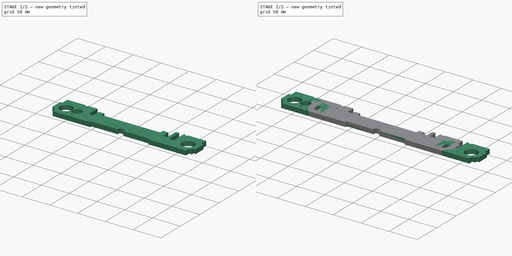
[diagram: build sequence overview — one tinted view per stage of 2, left to right]
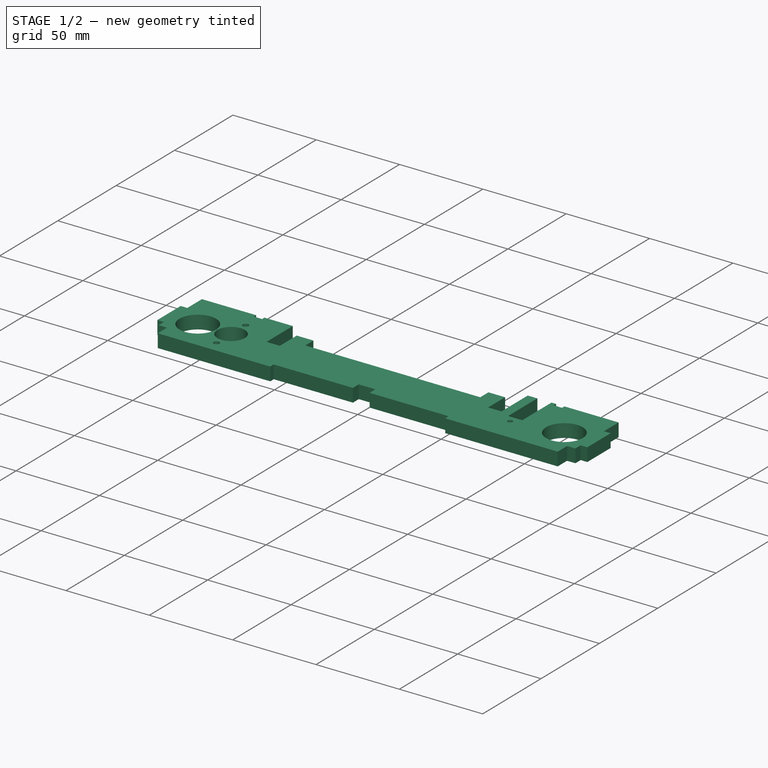
[diagram: stage 1 of 2 — iso view after this stage's code; geometry added in this stage tinted green]
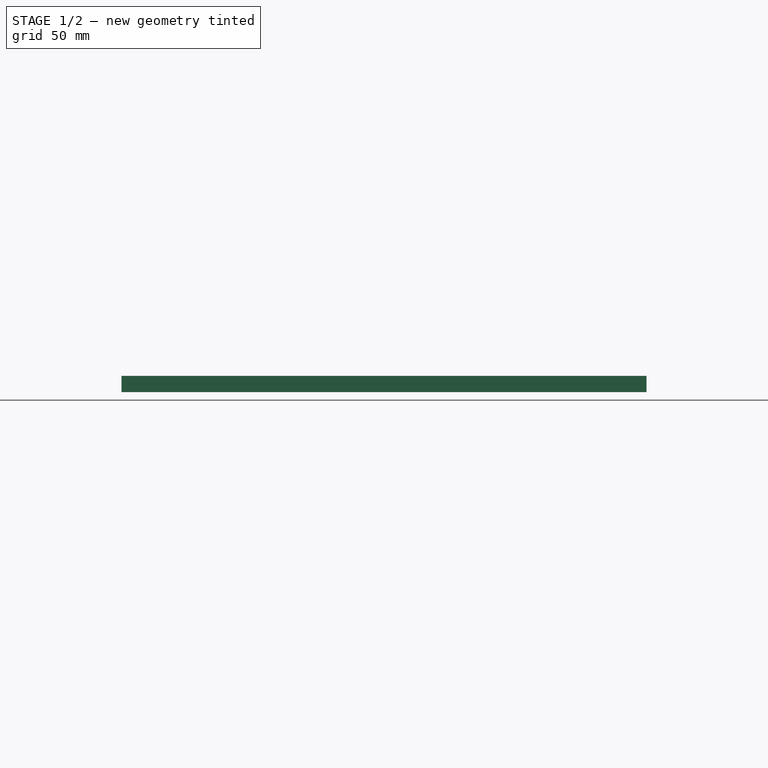
[diagram: stage 1 of 2 — front view after this stage's code; geometry added in this stage tinted green]
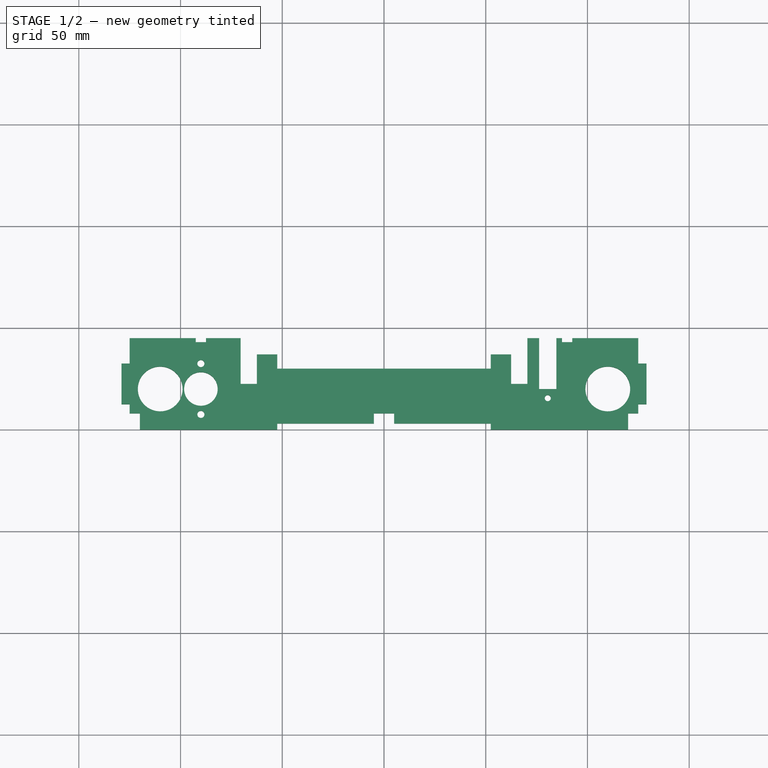
[diagram: stage 1 of 2 — top view after this stage's code; geometry added in this stage tinted green]
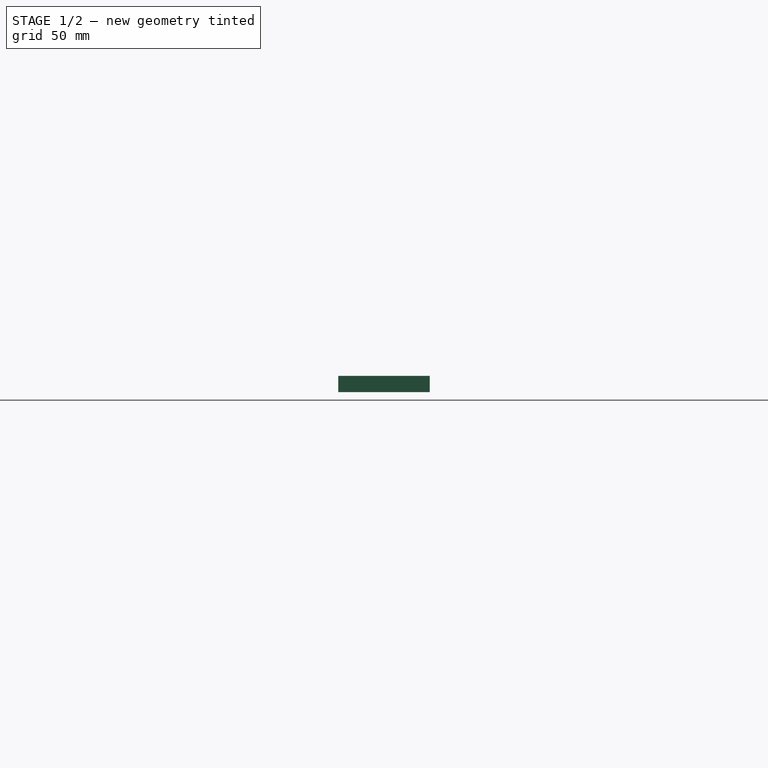
[diagram: stage 1 of 2 — right view after this stage's code; geometry added in this stage tinted green]
FCSTD DOCUMENT  (FreeCAD 0.19R24291 (Git))
Label: sibi_scroll-supports
License: All rights reserved
LicenseURL: http://en.wikipedia.org/wiki/All_rights_reserved
objects: App::MeasureDistance×3, Sketcher::SketchObject×2, PartDesign::Pad×2, PartDesign::Body×2, TechDraw::DrawViewPart×2, App::Part×2, TechDraw::DrawSVGTemplate×1, TechDraw::DrawPage×1
note: 8 computed .brp shape members not serialized (recipe doc carries the construction recipe); baked Part::Feature solids carry a one-line shape summary decoded from their .brp

FEATURE [PartDesign::Body] Body  label="short-scroll"
  Group = -> [Sketch,Pad]
  Origin = -> Origin
  Placement = pos=(1,0,0) rot=(0,0,1;0rad)
  Tip = -> Pad
FEATURE [Sketcher::SketchObject] Sketch001
  FullyConstrained = true
  MapMode = 5
  Support = -> [XY_Plane001]
  sketch-geometry (56):
    g0: LineSegment StartX=-125 StartY=45 StartZ=0 EndX=-92.5 EndY=45 EndZ=0
    g1: LineSegment StartX=125 StartY=45 StartZ=0 EndX=125 EndY=32.5 EndZ=0
    g2: LineSegment StartX=120 StartY=0 StartZ=0 EndX=52.5 EndY=0 EndZ=0
    g3: LineSegment StartX=-125 StartY=8 StartZ=0 EndX=-125 EndY=12.5 EndZ=0
    g4: LineSegment StartX=52.5 StartY=37 StartZ=0 EndX=52.5 EndY=30 EndZ=0
    g5: LineSegment StartX=52.5 StartY=30 StartZ=0 EndX=-52.5 EndY=30 EndZ=0
    g6: LineSegment StartX=-52.5 StartY=30 StartZ=0 EndX=-52.5 EndY=37 EndZ=0
    g7: LineSegment StartX=-62.5 StartY=37 StartZ=0 EndX=-62.5 EndY=22.5 EndZ=0
    g8: LineSegment StartX=-62.5 StartY=22.5 StartZ=0 EndX=-70.5 EndY=22.5 EndZ=0
    g9: LineSegment StartX=-70.5 StartY=22.5 StartZ=0 EndX=-70.5 EndY=45 EndZ=0
    g10: LineSegment StartX=70.5 StartY=45 StartZ=0 EndX=70.5 EndY=22.5 EndZ=0
    g11: LineSegment StartX=70.5 StartY=22.5 StartZ=0 EndX=62.5 EndY=22.5 EndZ=0
    g12: LineSegment StartX=62.5 StartY=22.5 StartZ=0 EndX=62.5 EndY=37 EndZ=0
    g13: LineSegment StartX=52.5 StartY=37 StartZ=0 EndX=62.5 EndY=37 EndZ=0
    g14: LineSegment StartX=-62.5 StartY=37 StartZ=0 EndX=-52.5 EndY=37 EndZ=0
    g15: Circle CenterX=-110 CenterY=20 CenterZ=0 NormalX=0 NormalY=0 NormalZ=1 AngleXU=0 Radius=11
    g16: Circle CenterX=110 CenterY=20 CenterZ=0 NormalX=0 NormalY=0 NormalZ=1 AngleXU=0 Radius=11
    g17: LineSegment StartX=70.5 StartY=45 StartZ=0 EndX=76.25 EndY=45 EndZ=0
    g18: LineSegment StartX=84.75 StartY=45 StartZ=0 EndX=84.75 EndY=20 EndZ=0
    g19: LineSegment StartX=84.75 StartY=20 StartZ=0 EndX=76.25 EndY=20 EndZ=0
    g20: LineSegment StartX=76.25 StartY=20 StartZ=0 EndX=76.25 EndY=45 EndZ=0
    g21: LineSegment StartX=84.75 StartY=45 StartZ=0 EndX=87.5 EndY=45 EndZ=0
    g22: GeomPoint X=80.5 Y=20 Z=0
    g23: GeomPoint X=0 Y=30 Z=0
    g24: Circle CenterX=80.5 CenterY=15.5 CenterZ=0 NormalX=0 NormalY=0 NormalZ=1 AngleXU=0 Radius=1.5
    g25: Circle CenterX=-90 CenterY=20 CenterZ=0 NormalX=0 NormalY=0 NormalZ=1 AngleXU=0 Radius=8.25
    g26: Circle CenterX=-90 CenterY=32.5 CenterZ=0 NormalX=0 NormalY=0 NormalZ=1 AngleXU=0 Radius=1.75
    g27: Circle CenterX=-90 CenterY=7.5 CenterZ=0 NormalX=0 NormalY=0 NormalZ=1 AngleXU=0 Radius=1.75
    g28: LineSegment StartX=125 StartY=32.5 StartZ=0 EndX=129 EndY=32.5 EndZ=0
    g29: LineSegment StartX=129 StartY=32.5 StartZ=0 EndX=129 EndY=12.5 EndZ=0
    g30: LineSegment StartX=129 StartY=12.5 StartZ=0 EndX=125 EndY=12.5 EndZ=0
    g31: LineSegment StartX=125 StartY=12.5 StartZ=0 EndX=125 EndY=8 EndZ=0
    g32: LineSegment StartX=-125 StartY=32.5 StartZ=0 EndX=-129 EndY=32.5 EndZ=0
    g33: LineSegment StartX=-129 StartY=32.5 StartZ=0 EndX=-129 EndY=12.5 EndZ=0
    g34: LineSegment StartX=-129 StartY=12.5 StartZ=0 EndX=-125 EndY=12.5 EndZ=0
    g35: LineSegment StartX=-125 StartY=32.5 StartZ=0 EndX=-125 EndY=45 EndZ=0
    g36: LineSegment StartX=-52.5 StartY=0 StartZ=0 EndX=-52.5 EndY=3 EndZ=0
    g37: LineSegment StartX=-52.5 StartY=3 StartZ=0 EndX=-5 EndY=3 EndZ=0
    g38: LineSegment StartX=52.5 StartY=3 StartZ=0 EndX=52.5 EndY=0 EndZ=0
    g39: LineSegment StartX=-52.5 StartY=0 StartZ=0 EndX=-120 EndY=0 EndZ=0
    g40: LineSegment StartX=-5 StartY=3 StartZ=0 EndX=-5 EndY=8 EndZ=0
    g41: LineSegment StartX=-5 StartY=8 StartZ=0 EndX=5 EndY=8 EndZ=0
    g42: LineSegment StartX=5 StartY=8 StartZ=0 EndX=5 EndY=3 EndZ=0
    g43: LineSegment StartX=5 StartY=3 StartZ=0 EndX=52.5 EndY=3 EndZ=0
    g44: LineSegment StartX=-125 StartY=8 StartZ=0 EndX=-120 EndY=8 EndZ=0
    g45: LineSegment StartX=-120 StartY=8 StartZ=0 EndX=-120 EndY=0 EndZ=0
    g46: LineSegment StartX=120 StartY=0 StartZ=0 EndX=120 EndY=8 EndZ=0
    g47: LineSegment StartX=120 StartY=8 StartZ=0 EndX=125 EndY=8 EndZ=0
    g48: LineSegment StartX=87.5 StartY=45 StartZ=0 EndX=87.5 EndY=43 EndZ=0
    g49: LineSegment StartX=87.5 StartY=43 StartZ=0 EndX=92.5 EndY=43 EndZ=0
    g50: LineSegment StartX=92.5 StartY=43 StartZ=0 EndX=92.5 EndY=45 EndZ=0
    g51: LineSegment StartX=92.5 StartY=45 StartZ=0 EndX=125 EndY=45 EndZ=0
    g52: LineSegment StartX=-87.5 StartY=45 StartZ=0 EndX=-87.5 EndY=43 EndZ=0
    g53: LineSegment StartX=-87.5 StartY=43 StartZ=0 EndX=-92.5 EndY=43 EndZ=0
    g54: LineSegment StartX=-92.5 StartY=43 StartZ=0 EndX=-92.5 EndY=45 EndZ=0
    g55: LineSegment StartX=-87.5 StartY=45 StartZ=0 EndX=-70.5 EndY=45 EndZ=0
  constraints (153):
    c: Coincident(g35,g0)
    c: Horizontal(g0)
    c: Vertical(g1)
    c: Vertical(g3)
    c: Coincident(g4,g5)
    c: Coincident(g5,g6)
    c: Horizontal(g5)
    c: Vertical(g4)
    c: Vertical(g6)
    c: Coincident(g7,g8)
    c: Coincident(g8,g9)
    c: Horizontal(g8)
    c: Vertical(g7)
    c: Vertical(g9)
    c: Coincident(g10,g11)
    c: Coincident(g11,g12)
    c: Horizontal(g11)
    c: Vertical(g10)
    c: Vertical(g12)
    c: Coincident(g6,g14)
    c: Coincident(g7,g14)
    c: Coincident(g9,g55)
    c: Coincident(g4,g13)
    c: Coincident(g12,g13)
    c: Equal(g8,g11)
    c: Equal(g13,g14)
    c: DistanceX(g11,g11) = 8
    c: DistanceY(g10,g10) = 22.5
    c: Equal(g15,g16)
    c: Diameter(g16) = 22
    c: DistanceX(g16,g1) = 15
    c: DistanceY(g16,g15) = 0
    c: DistanceX(g5,g5) = 105
    c: Coincident(g17,g10)
    c: Coincident(g51,g1)
    c: DistanceX(g14,g14) = 10
    c: Coincident(g18,g19)
    c: Coincident(g19,g20)
    c: Horizontal(g19)
    c: Vertical(g18)
    c: Vertical(g20)
    c: Coincident(g17,g20)
    c: Coincident(g21,g18)
    c: Tangent(g17,g21)
    c: DistanceX(g17,g18) = 8.5
    c: Symmetric(g19,g18,g22)
    c: DistanceX(g10,g22) = 10
    c: Symmetric(g5,g4,g23)
    c: DistanceX(g23,g-1) = 0
    c: Diameter(g24) = 3
    c: DistanceY(g24,g22) = 4.5
    c: DistanceX(g10,g24) = 10
    c: Diameter(g25) = 16.5
    c: DistanceY(g25,g0) = 25
    c: Diameter(g26) = 3.5
    c: Equal(g27,g26)
    c: Symmetric(g27,g26,g25)
    c: DistanceX(g15,g25) = 20
    c: DistanceX(g15,g26) = 20
    c: Coincident(g28,g29)
    c: Coincident(g29,g30)
    c: Horizontal(g28)
    c: Horizontal(g30)
    c: Vertical(g29)
    c: DistanceX(g28,g28) = 4
    c: DistanceY(g29,g29) = 20
    c: DistanceY(g28,g1) = 12.5
    c: Coincident(g1,g28)
    c: Horizontal(g32)
    c: Coincident(g32,g33)
    c: Vertical(g33)
    c: Coincident(g33,g34)
    c: Horizontal(g34)
    c: DistanceY(g33,g33) = 20
    c: DistanceX(g32,g32) = 4
    c: DistanceY(g32,g0) = 12.5
    c: Coincident(g3,g34)
    c: Coincident(g35,g32)
    c: Tangent(g3,g35)
    c: Coincident(g30,g31)
    c: Vertical(g36)
    c: Coincident(g36,g37)
    c: Horizontal(g37)
    c: Coincident(g43,g38)
    c: DistanceY(g38,g38) = 3
    c: Symmetric(g38,g36,g-1)
    c: Coincident(g39,g36)
    c: Tangent(g2,g39)
    c: Vertical(g40)
    c: Coincident(g40,g41)
    c: Horizontal(g41)
    c: Coincident(g41,g42)
    c: Vertical(g42)
    c: Symmetric(g42,g40,g-2)
    c: DistanceY(g42,g42) = 5
    c: DistanceX(g41,g41) = 10
    c: Coincident(g37,g40)
    c: PointOnObject(g43,g42)
    c: Tangent(g37,g43)
    c: Horizontal(g44)
    c: Coincident(g44,g45)
    c: Vertical(g45)
    c: DistanceY(g45,g45) = 8
    c: DistanceX(g44,g44) = 5
    c: Coincident(g39,g45)
    c: Coincident(g3,g44)
    c: Vertical(g46)
    c: Coincident(g46,g47)
    c: Horizontal(g47)
    c: DistanceX(g47,g47) = 5
    c: DistanceY(g46,g46) = 8
    c: Coincident(g31,g47)
    c: Coincident(g2,g46)
    c: Coincident(g2,g38)
    c: Symmetric(g39,g2,g-2)
    c: DistanceY(g39,g0) = 45
    c: DistanceX(g32,g15) = 15
    c: Vertical(g48)
    c: Coincident(g48,g49)
    c: Horizontal(g49)
    c: Coincident(g49,g50)
    c: Vertical(g50)
    c: DistanceY(g49,g50) = 2
    c: DistanceX(g49,g49) = 5
    c: DistanceX(g10,g48) = 17
    c: Coincident(g21,g48)
    c: Coincident(g51,g50)
    c: Tangent(g21,g51)
    c: Vertical(g52)
    c: Coincident(g52,g53)
    c: Horizontal(g53)
    c: Coincident(g53,g54)
    c: Vertical(g54)
    c: Equal(g53,g49)
    c: Equal(g48,g52)
    c: Coincident(g0,g54)
    c: Coincident(g55,g52)
    c: Tangent(g0,g55)
    c: Equal(g51,g0)
    c: DistanceY(g25,g15) = 0
    c: DistanceY(g27,g26) = 25
    c: Tangent(g38,g4)
    c: Tangent(g31,g1)
    c: DistanceX(g3,g31) = 250
    c: DistanceY(g16,g18) = 0
    c: DistanceY(g36,g5) = 30
    c: DistanceY(g7,g9) = 8
    c: DistanceY(g7,g6) = 0
    c: Equal(g9,g10)
    c: Equal(g4,g6)
    c: DistanceY(g4,g12) = 0
    c: Equal(g12,g7)
    c: DistanceY(g17,g10) = 0
FEATURE [PartDesign::Pad] Pad001
  Direction = (1,1,1)
  Length = 8
  Length2 = 100
  Profile = -> Sketch001
  Refine = true
  Type = 0
FEATURE [PartDesign::Body] Body001  label="long-scroll"
  Group = -> [Sketch001,Pad001]
  Origin = -> Origin001
  Tip = -> Pad001
FEATURE [TechDraw::DrawSVGTemplate] Template
  Height = 297
  Orientation = 1
  Width = 420
FEATURE [TechDraw::DrawViewPart] View
  CoarseView = false
  Direction = (0,0,1)
  Focus = 100
  HardHidden = false
  IsoCount = 0
  IsoHidden = false
  IsoVisible = false
  LockPosition = false
  Perspective = false
  Rotation = 0
  ScaleType = 0
  SeamHidden = false
  SeamVisible = true
  SmoothHidden = false
  SmoothVisible = true
  Source = -> [Body]
  X = 192.9
  XDirection = (1,0,0)
  Y = 240.035
FEATURE [TechDraw::DrawViewPart] View001
  CoarseView = false
  Direction = (0,0,1)
  Focus = 100
  HardHidden = false
  IsoCount = 0
  IsoHidden = false
  IsoVisible = false
  LockPosition = false
  Perspective = false
  Rotation = 0
  ScaleType = 0
  SeamHidden = false
  SeamVisible = true
  SmoothHidden = false
  SmoothVisible = true
  Source = -> [Body001]
  X = 152.165
  XDirection = (1,0,0)
  Y = 187.737
FEATURE [TechDraw::DrawPage] Page
  KeepUpdated = true
  NextBalloonIndex = 1
  ProjectionType = 0
  Template = -> Template
  Views = -> [View,View001]
FEATURE [App::Part] Part  label="verts"
  Group = -> [Body]
  Origin = -> Origin002
FEATURE [App::Part] Part001  label="horz"
  Group = -> [Body001]
  Origin = -> Origin003
FEATURE [App::MeasureDistance] Distance001  label="Distance: 67,00 mm"
  Distance = 67
  P1 = (-167,0,8)
  P2 = (-100,-2e-16,8)
FEATURE [App::MeasureDistance] Distance002  label="Distance: 67,50 mm"
  Distance = 67.5
  P1 = (-120,0,8)
  P2 = (-52.5,0,8)
FEATURE [App::MeasureDistance] Distance  label="Distance: 10,00 mm"
  Distance = 10
  P1 = (-62.5,45,8)
  P2 = (-52.5,45,8)
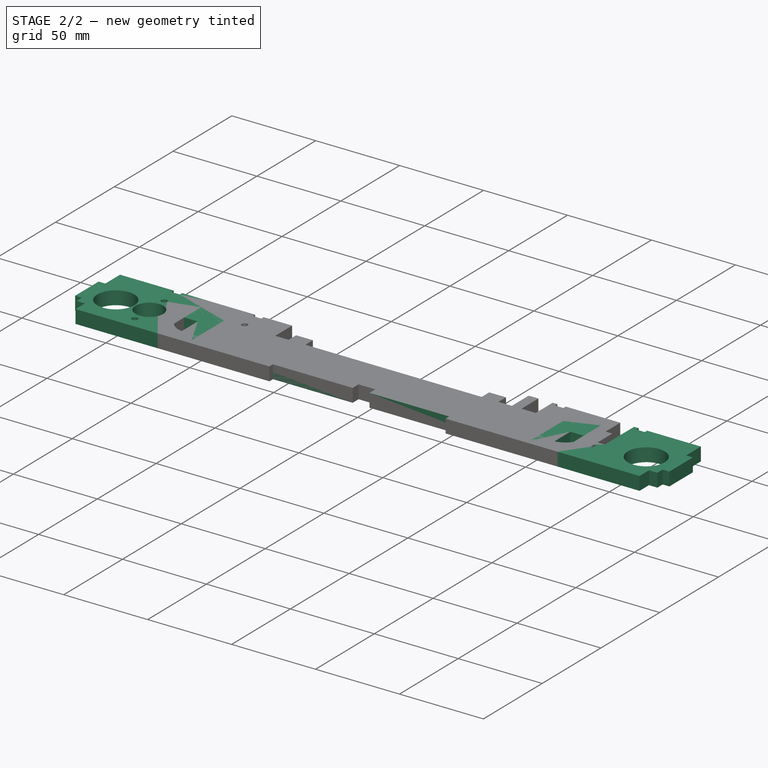
[diagram: stage 2 of 2 — iso view after this stage's code; geometry added in this stage tinted green]
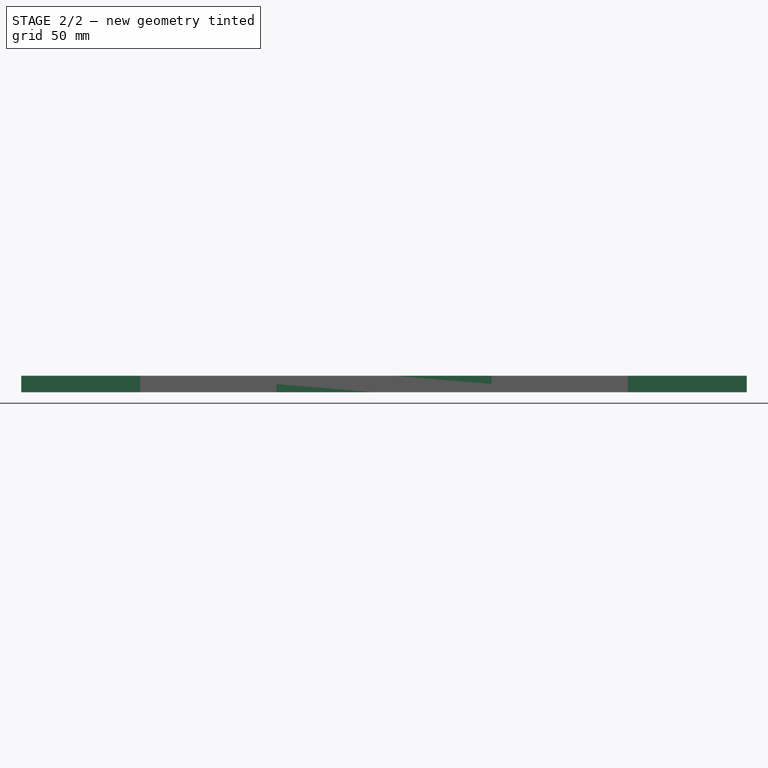
[diagram: stage 2 of 2 — front view after this stage's code; geometry added in this stage tinted green]
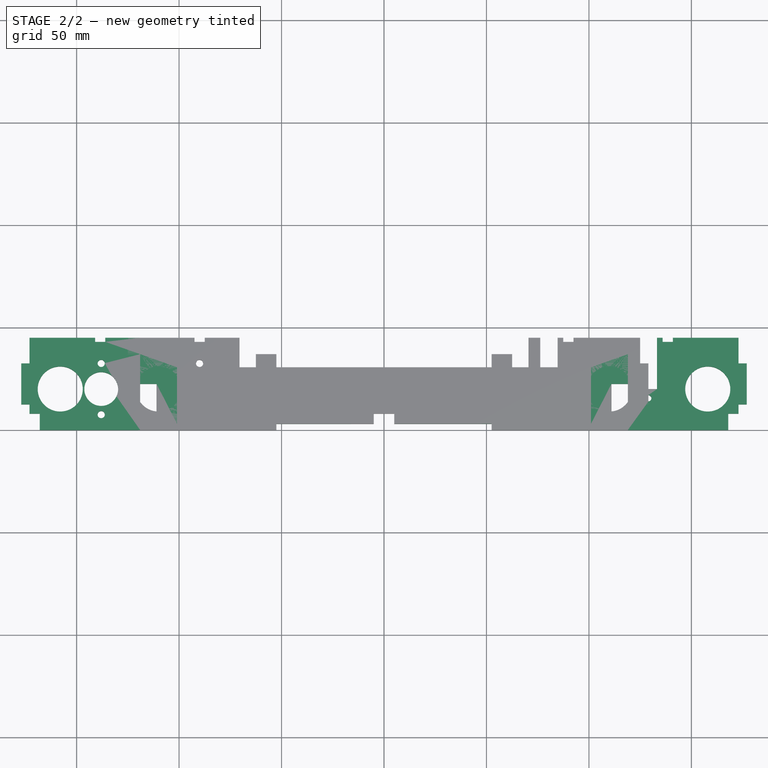
[diagram: stage 2 of 2 — top view after this stage's code; geometry added in this stage tinted green]
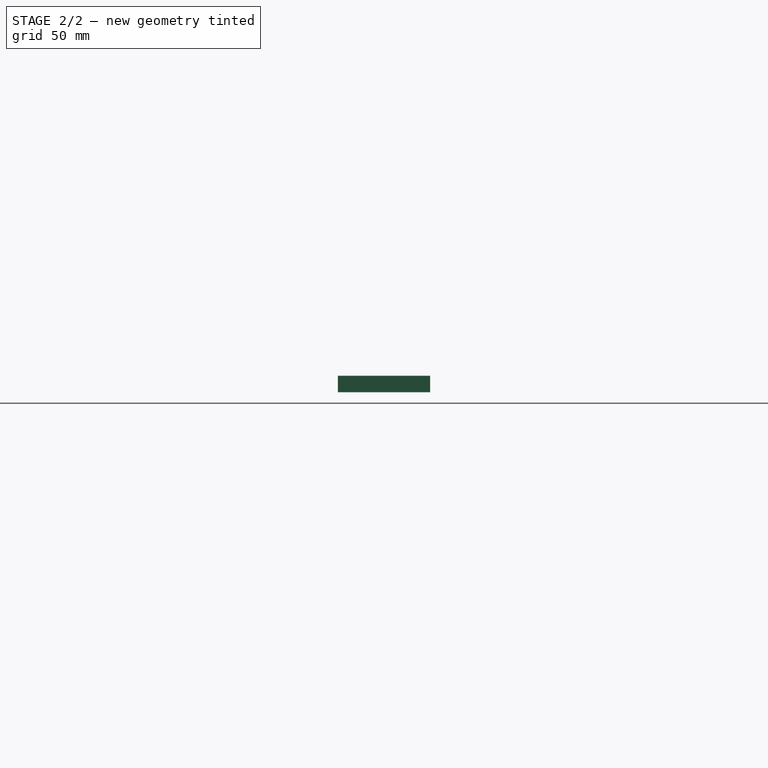
[diagram: stage 2 of 2 — right view after this stage's code; geometry added in this stage tinted green]
FEATURE [Sketcher::SketchObject] Sketch
  FullyConstrained = true
  MapMode = 5
  Support = -> [XY_Plane]
  sketch-geometry (60):
    g0: LineSegment StartX=-173 StartY=45 StartZ=0 EndX=-141 EndY=45 EndZ=0
    g1: LineSegment StartX=173 StartY=45 StartZ=0 EndX=173 EndY=32.5 EndZ=0
    g2: LineSegment StartX=168 StartY=0 StartZ=0 EndX=119 EndY=0 EndZ=0
    g3: LineSegment StartX=-173 StartY=8 StartZ=0 EndX=-173 EndY=12.5 EndZ=0
    g4: LineSegment StartX=101 StartY=37 StartZ=0 EndX=101 EndY=30.6 EndZ=0
    g5: LineSegment StartX=-101 StartY=30.6 StartZ=0 EndX=-101 EndY=37 EndZ=0
    g6: LineSegment StartX=-119 StartY=22.5 StartZ=0 EndX=-111 EndY=22.5 EndZ=0
    g7: LineSegment StartX=-111 StartY=22.5 StartZ=0 EndX=-111 EndY=0 EndZ=0
    g8: LineSegment StartX=-119 StartY=0 StartZ=0 EndX=-119 EndY=22.5 EndZ=0
    g9: LineSegment StartX=111 StartY=22.5 StartZ=0 EndX=119 EndY=22.5 EndZ=0
    g10: LineSegment StartX=119 StartY=22.5 StartZ=0 EndX=119 EndY=0 EndZ=0
    g11: LineSegment StartX=111 StartY=0 StartZ=0 EndX=111 EndY=22.5 EndZ=0
    g12: LineSegment StartX=111 StartY=0 StartZ=0 EndX=101 EndY=0 EndZ=0
    g13: LineSegment StartX=-119 StartY=0 StartZ=0 EndX=-168 EndY=0 EndZ=0
    g14: Circle CenterX=-158 CenterY=20 CenterZ=0 NormalX=0 NormalY=0 NormalZ=1 AngleXU=0 Radius=11
    g15: Circle CenterX=158 CenterY=20 CenterZ=0 NormalX=0 NormalY=0 NormalZ=1 AngleXU=0 Radius=11
    g16: LineSegment StartX=-101 StartY=30.6 StartZ=0 EndX=101 EndY=30.6 EndZ=0
    g17: LineSegment StartX=133.25 StartY=45 StartZ=0 EndX=133.25 EndY=20 EndZ=0
    g18: LineSegment StartX=133.25 StartY=20 StartZ=0 EndX=124.75 EndY=20 EndZ=0
    g19: LineSegment StartX=124.75 StartY=20 StartZ=0 EndX=124.75 EndY=45 EndZ=0
    g20: LineSegment StartX=133.25 StartY=45 StartZ=0 EndX=136 EndY=45 EndZ=0
    g21: GeomPoint X=129 Y=20 Z=0
    g22: GeomPoint X=0 Y=30.6 Z=0
    g23: Circle CenterX=129 CenterY=15.5 CenterZ=0 NormalX=0 NormalY=0 NormalZ=1 AngleXU=0 Radius=1.5
    g24: Circle CenterX=-138 CenterY=20 CenterZ=0 NormalX=0 NormalY=0 NormalZ=1 AngleXU=0 Radius=8.25
    g25: LineSegment StartX=-173 StartY=8 StartZ=0 EndX=-168 EndY=8 EndZ=0
    g26: LineSegment StartX=-168 StartY=8 StartZ=0 EndX=-168 EndY=0 EndZ=0
    g27: LineSegment StartX=173 StartY=8 StartZ=0 EndX=168 EndY=8 EndZ=0
    g28: LineSegment StartX=168 StartY=8 StartZ=0 EndX=168 EndY=0 EndZ=0
    g29: Circle CenterX=-138 CenterY=7.5 CenterZ=0 NormalX=0 NormalY=0 NormalZ=1 AngleXU=0 Radius=1.75
    g30: Circle CenterX=-138 CenterY=32.5 CenterZ=0 NormalX=0 NormalY=0 NormalZ=1 AngleXU=0 Radius=1.75
    g31: LineSegment StartX=-101 StartY=0 StartZ=0 EndX=-101 EndY=3 EndZ=0
    g32: LineSegment StartX=-101 StartY=3 StartZ=0 EndX=-5 EndY=3 EndZ=0
    g33: LineSegment StartX=101 StartY=3 StartZ=0 EndX=101 EndY=0 EndZ=0
    g34: LineSegment StartX=-101 StartY=0 StartZ=0 EndX=-111 EndY=0 EndZ=0
    g35: LineSegment StartX=-5 StartY=3 StartZ=0 EndX=-5 EndY=8 EndZ=0
    g36: LineSegment StartX=-5 StartY=8 StartZ=0 EndX=5 EndY=8 EndZ=0
    g37: LineSegment StartX=5 StartY=8 StartZ=0 EndX=5 EndY=3 EndZ=0
    g38: LineSegment StartX=5 StartY=3 StartZ=0 EndX=101 EndY=3 EndZ=0
    g39: LineSegment StartX=-173 StartY=32.5 StartZ=0 EndX=-177 EndY=32.5 EndZ=0
    g40: LineSegment StartX=-177 StartY=32.5 StartZ=0 EndX=-177 EndY=12.5 EndZ=0
    g41: LineSegment StartX=-177 StartY=12.5 StartZ=0 EndX=-173 EndY=12.5 EndZ=0
    g42: LineSegment StartX=-173 StartY=32.5 StartZ=0 EndX=-173 EndY=45 EndZ=0
    g43: LineSegment StartX=173 StartY=32.5 StartZ=0 EndX=177 EndY=32.5 EndZ=0
    g44: LineSegment StartX=177 StartY=32.5 StartZ=0 EndX=177 EndY=12.5 EndZ=0
    g45: LineSegment StartX=177 StartY=12.5 StartZ=0 EndX=173 EndY=12.5 EndZ=0
    g46: LineSegment StartX=173 StartY=12.5 StartZ=0 EndX=173 EndY=8 EndZ=0
    g47: LineSegment StartX=136 StartY=45 StartZ=0 EndX=136 EndY=43 EndZ=0
    g48: LineSegment StartX=136 StartY=43 StartZ=0 EndX=141 EndY=43 EndZ=0
    g49: LineSegment StartX=141 StartY=43 StartZ=0 EndX=141 EndY=45 EndZ=0
    g50: LineSegment StartX=141 StartY=45 StartZ=0 EndX=173 EndY=45 EndZ=0
    g51: LineSegment StartX=-136 StartY=45 StartZ=0 EndX=-136 EndY=43 EndZ=0
    g52: LineSegment StartX=-136 StartY=43 StartZ=0 EndX=-141 EndY=43 EndZ=0
    g53: LineSegment StartX=-141 StartY=43 StartZ=0 EndX=-141 EndY=45 EndZ=0
    g54: LineSegment StartX=-136 StartY=45 StartZ=0 EndX=-119 EndY=45 EndZ=0
    g55: LineSegment StartX=-119 StartY=45 StartZ=0 EndX=-119 EndY=37 EndZ=0
    g56: LineSegment StartX=-119 StartY=37 StartZ=0 EndX=-101 EndY=37 EndZ=0
    g57: LineSegment StartX=101 StartY=37 StartZ=0 EndX=119 EndY=37 EndZ=0
    g58: LineSegment StartX=119 StartY=37 StartZ=0 EndX=119 EndY=45 EndZ=0
    g59: LineSegment StartX=119 StartY=45 StartZ=0 EndX=124.75 EndY=45 EndZ=0
  constraints (165):
    c: Coincident(g50,g1)
    c: Coincident(g42,g0)
    c: Horizontal(g0)
    c: Horizontal(g2)
    c: Vertical(g1)
    c: Vertical(g3)
    c: Vertical(g4)
    c: Vertical(g5)
    c: Coincident(g6,g7)
    c: Coincident(g8,g6)
    c: Horizontal(g6)
    c: Vertical(g7)
    c: Vertical(g8)
    c: Coincident(g9,g10)
    c: Coincident(g11,g9)
    c: Horizontal(g9)
    c: Vertical(g10)
    c: Vertical(g11)
    c: Tangent(g12,g13)
    c: Coincident(g8,g13)
    c: Coincident(g7,g34)
    c: Coincident(g11,g12)
    c: Coincident(g10,g2)
    c: Equal(g14,g15)
    c: Radius(g15) = 11
    c: Equal(g7,g11)
    c: DistanceX(g8,g7) = 8
    c: DistanceX(g7,g5) = 10
    c: Symmetric(g7,g11,g-1)
    c: DistanceY(g10,g10) = 22.5
    c: Coincident(g16,g5)
    c: Coincident(g16,g4)
    c: Horizontal(g16)
    c: DistanceY(g14,g15) = 0
    c: DistanceY(g7,g5) = 30.6
    c: Coincident(g17,g18)
    c: Coincident(g18,g19)
    c: Horizontal(g18)
    c: Vertical(g17)
    c: Vertical(g19)
    c: Coincident(g20,g17)
    c: Symmetric(g5,g4,g22)
    c: DistanceX(g22,g-1) = 0
    c: Symmetric(g18,g17,g21)
    c: DistanceX(g9,g21) = 10
    c: DistanceX(g19,g17) = 8.5
    c: DistanceY(g17,g17) = 25
    c: DistanceY(g23,g21) = 4.5
    c: Diameter(g23) = 3
    c: DistanceX(g9,g23) = 10
    c: DistanceX(g0,g1) = 346
    c: Diameter(g24) = 16.5
    c: Horizontal(g25)
    c: Coincident(g25,g26)
    c: Vertical(g26)
    c: DistanceX(g25,g25) = 5
    c: DistanceY(g26,g26) = 8
    c: Coincident(g3,g25)
    c: Coincident(g13,g26)
    c: Horizontal(g27)
    c: Coincident(g27,g28)
    c: Vertical(g28)
    c: DistanceX(g27,g27) = 5
    c: DistanceY(g28,g28) = 8
    c: Coincident(g2,g28)
    c: Coincident(g46,g27)
    c: Symmetric(g2,g13,g-1)
    c: DistanceY(g13,g0) = 45
    c: Diameter(g29) = 3.5
    c: Equal(g30,g29)
    c: DistanceY(g29,g30) = 25
    c: Symmetric(g30,g29,g24)
    c: DistanceY(g24,g14) = 0
    c: Coincident(g31,g32)
    c: Horizontal(g32)
    c: Coincident(g38,g33)
    c: Vertical(g33)
    c: DistanceY(g33,g33) = 3
    c: Symmetric(g33,g31,g-1)
    c: Coincident(g12,g33)
    c: Coincident(g34,g31)
    c: Coincident(g35,g36)
    c: Horizontal(g36)
    c: Coincident(g36,g37)
    c: Vertical(g37)
    c: DistanceX(g36,g36) = 10
    c: Coincident(g32,g35)
    c: Coincident(g38,g37)
    c: Tangent(g32,g38)
    c: Equal(g38,g32)
    c: DistanceY(g37,g37) = 5
    c: Tangent(g12,g2)
    c: DistanceY(g15,g1) = 25
    c: Horizontal(g39)
    c: Coincident(g39,g40)
    c: Vertical(g40)
    c: Coincident(g40,g41)
    c: Horizontal(g41)
    c: DistanceX(g39,g39) = 4
    c: DistanceY(g40,g40) = 20
    c: DistanceY(g39,g0) = 12.5
    c: Coincident(g3,g41)
    c: Coincident(g42,g39)
    c: Tangent(g3,g42)
    c: Horizontal(g43)
    c: Coincident(g43,g44)
    c: Vertical(g44)
    c: Coincident(g44,g45)
    c: Horizontal(g45)
    c: Equal(g39,g43)
    c: Equal(g44,g40)
    c: Coincident(g1,g43)
    c: Coincident(g46,g45)
    c: Tangent(g1,g46)
    c: Equal(g1,g42)
    c: DistanceX(g39,g14) = 15
    c: DistanceX(g14,g24) = 20
    c: DistanceX(g24,g29) = 0
    c: DistanceX(g15,g1) = 15
    c: Vertical(g47)
    c: Coincident(g47,g48)
    c: Horizontal(g48)
    c: Coincident(g48,g49)
    c: Vertical(g49)
    c: DistanceX(g47,g48) = 5
    c: DistanceY(g47,g47) = 2
    c: DistanceX(g9,g47) = 17  'abstandrohr'
    c: Coincident(g20,g47)
    c: Coincident(g50,g49)
    c: Tangent(g20,g50)
    c: Vertical(g51)
    c: Coincident(g51,g52)
    c: Horizontal(g52)
    c: Coincident(g52,g53)
    c: Vertical(g53)
    c: Equal(g53,g47)
    c: Equal(g48,g52)
    c: DistanceX(g51,g6) = 17
    c: Equal(g51,g53)
    c: Tangent(g5,g31)
    c: Vertical(g35)
    c: Equal(g6,g9)
    c: DistanceY(g5,g51) = 8
    c: Coincident(g53,g0)
    c: Coincident(g51,g54)
    c: Horizontal(g54)
    c: Coincident(g54,g55)
    c: Vertical(g55)
    c: Coincident(g55,g56)
    c: Coincident(g56,g5)
    c: Horizontal(g56)
    c: DistanceX(g6,g55) = 0
    c: DistanceX(g16,g16) = 202
    c: Coincident(g4,g57)
    c: Horizontal(g57)
    c: Coincident(g57,g58)
    c: Vertical(g58)
    c: Coincident(g58,g59)
    c: Coincident(g59,g19)
    c: Horizontal(g59)
    c: DistanceX(g57,g9) = 0
    c: Equal(g19,g17)
    c: DistanceY(g1,g49) = 0
    c: Equal(g5,g4)
    c: Equal(g55,g58)
FEATURE [PartDesign::Pad] Pad
  Direction = (1,1,1)
  Length = 8
  Length2 = 100
  Profile = -> Sketch
  Refine = true
  Type = 0
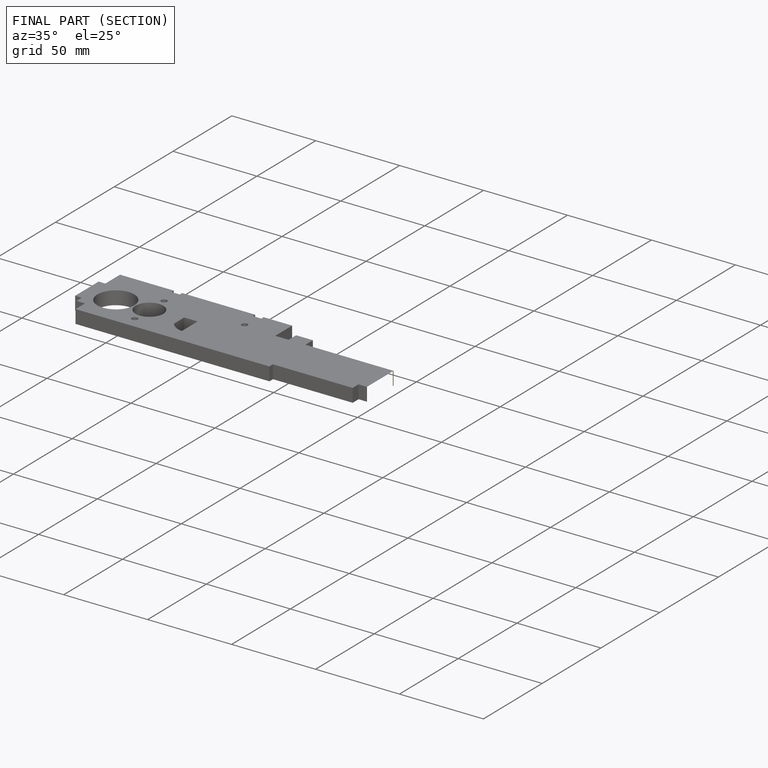
[diagram: finished part — half-section view (interior)]
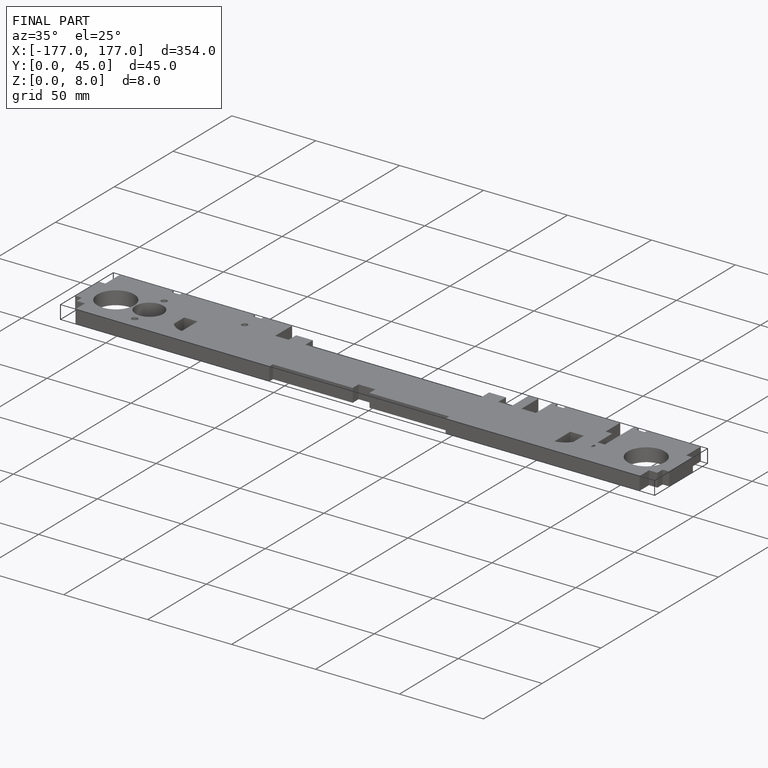
[diagram: finished part — iso view with bounding-box wireframe]
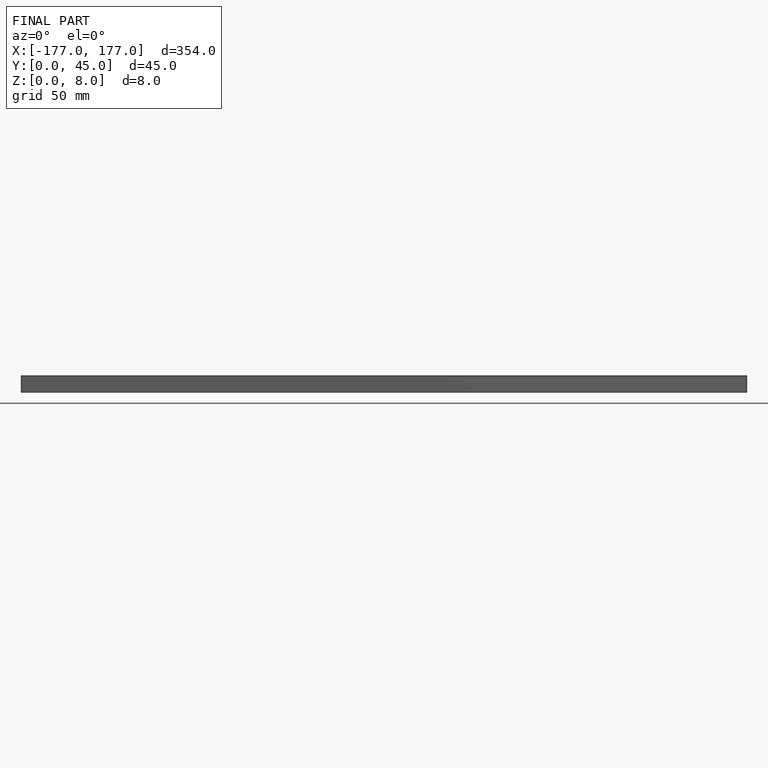
[diagram: finished part — front view with bounding-box wireframe]
